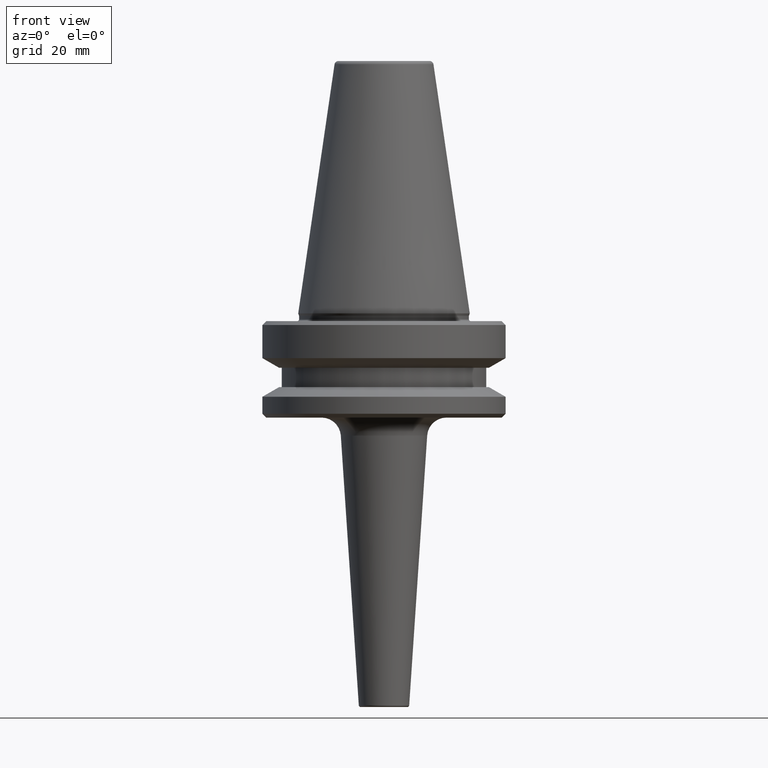
[diagram: clean part render]
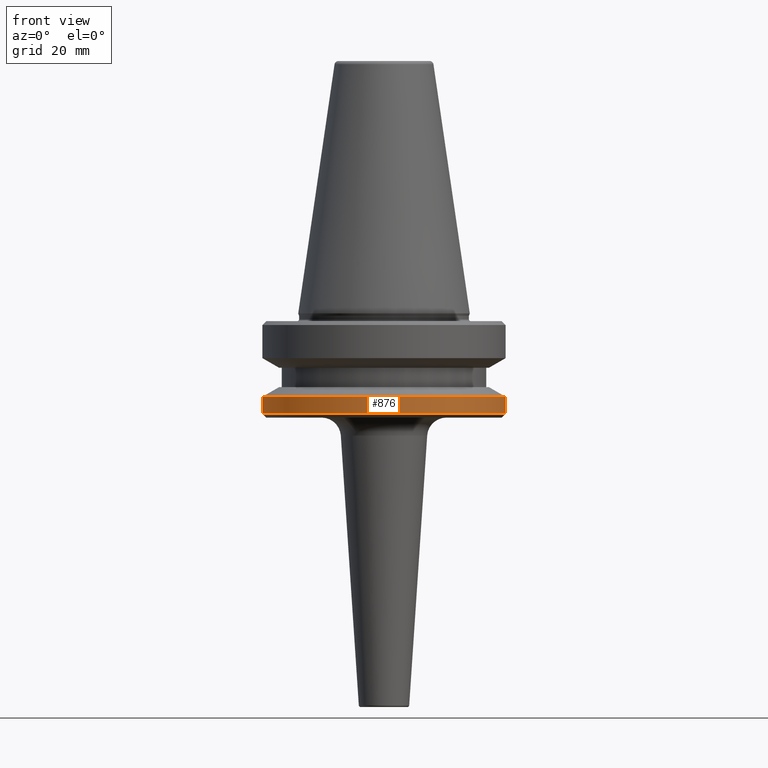
[diagram: same view with one face highlighted and labeled with its STEP entity id]
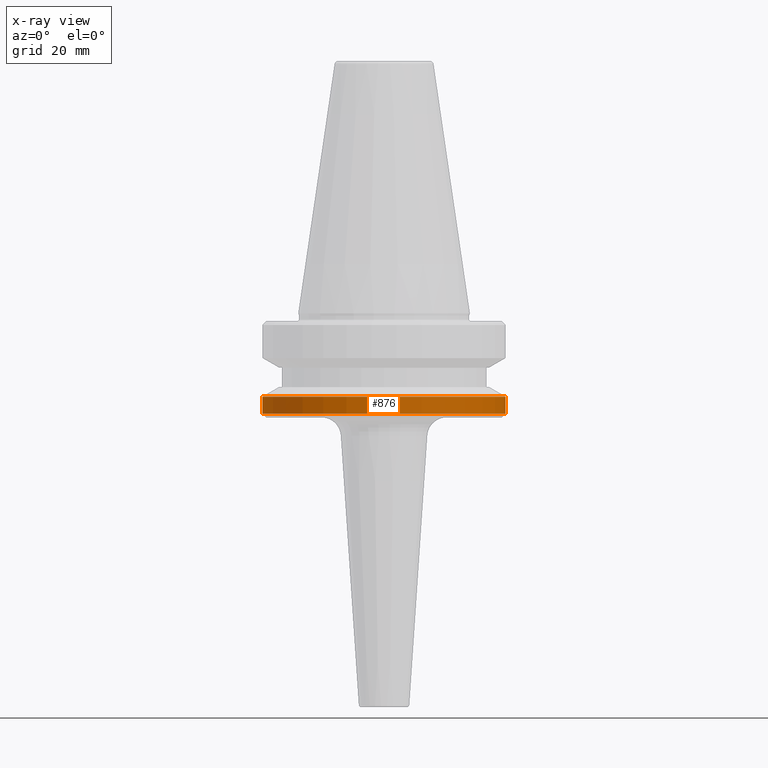
[diagram: x-ray of the same camera — body ghosted, the highlighted face saturated]
A machine part, front view. The second image highlights one B-rep face of the part: STEP entity #876.
The next image is the same camera in x-ray: the body ghosted, the highlighted face saturated — about 0% of this face is hidden behind the body in this view.
In plain terms, the highlighted cylindrical surface (partial cylindrical patch) has radius 31.5 mm, axis along (-0, -0, 1).
Its self-contained STEP definition (entity closure, byte-faithful):
#7 = AXIS2_PLACEMENT_3D ( 'NONE', #778, #225, #48 ) ;
#48 = DIRECTION ( 'NONE',  ( 1.000000000000000000, 0.0000000000000000000, 0.0000000000000000000 ) ) ;
#54 = DIRECTION ( 'NONE',  ( -0.0000000000000000000, -0.0000000000000000000, 1.000000000000000000 ) ) ;
#68 = ORIENTED_EDGE ( 'NONE', *, *, #579, .T. ) ;
#88 = VECTOR ( 'NONE', #294, 1000.000000000000000 ) ;
#100 = AXIS2_PLACEMENT_3D ( 'NONE', #879, #54, #478 ) ;
#107 = CARTESIAN_POINT ( 'NONE',  ( -31.50000000000008500, 3.857637417314172900E-015, -91.40000000000037500 ) ) ;
#149 = ORIENTED_EDGE ( 'NONE', *, *, #975, .F. ) ;
#167 = AXIS2_PLACEMENT_3D ( 'NONE', #389, #611, #531 ) ;
#190 = DIRECTION ( 'NONE',  ( -0.0000000000000000000, -0.0000000000000000000, 1.000000000000000000 ) ) ;
#204 = VECTOR ( 'NONE', #190, 1000.000000000000000 ) ;
#225 = DIRECTION ( 'NONE',  ( -0.0000000000000000000, -0.0000000000000000000, 1.000000000000000000 ) ) ;
#227 = VERTEX_POINT ( 'NONE', #349 ) ;
#294 = DIRECTION ( 'NONE',  ( -0.0000000000000000000, -0.0000000000000000000, 1.000000000000000000 ) ) ;
#315 = CYLINDRICAL_SURFACE ( 'NONE', #167, 31.50000000000008500 ) ;
#332 = ORIENTED_EDGE ( 'NONE', *, *, #846, .T. ) ;
#344 = FACE_OUTER_BOUND ( 'NONE', #772, .T. ) ;
#349 = CARTESIAN_POINT ( 'NONE',  ( 31.50000000000008500, 0.0000000000000000000, -91.40000000000037500 ) ) ;
#383 = ORIENTED_EDGE ( 'NONE', *, *, #836, .F. ) ;
#389 = CARTESIAN_POINT ( 'NONE',  ( 0.0000000000000000000, 0.0000000000000000000, 6.357346922996331500 ) ) ;
#401 = LINE ( 'NONE', #440, #204 ) ;
#403 = CIRCLE ( 'NONE', #100, 31.50000000000008500 ) ;
#440 = CARTESIAN_POINT ( 'NONE',  ( -31.50000000000008500, 3.857637417314172900E-015, 6.357346922996331500 ) ) ;
#478 = DIRECTION ( 'NONE',  ( 1.000000000000000000, 0.0000000000000000000, 0.0000000000000000000 ) ) ;
#531 = DIRECTION ( 'NONE',  ( 1.000000000000000000, 0.0000000000000000000, 0.0000000000000000000 ) ) ;
#579 = EDGE_CURVE ( 'NONE', #227, #990, #908, .T. ) ;
#611 = DIRECTION ( 'NONE',  ( -0.0000000000000000000, -0.0000000000000000000, 1.000000000000000000 ) ) ;
#671 = CARTESIAN_POINT ( 'NONE',  ( -31.50000000000008500, 3.857637417314172900E-015, -87.00014200631733300 ) ) ;
#772 = EDGE_LOOP ( 'NONE', ( #149, #332, #68, #383 ) ) ;
#778 = CARTESIAN_POINT ( 'NONE',  ( 0.0000000000000000000, 0.0000000000000000000, -87.00014200631733300 ) ) ;
#836 = EDGE_CURVE ( 'NONE', #936, #990, #1027, .T. ) ;
#846 = EDGE_CURVE ( 'NONE', #959, #227, #403, .T. ) ;
#876 = ADVANCED_FACE ( 'NONE', ( #344 ), #315, .T. ) ;
#879 = CARTESIAN_POINT ( 'NONE',  ( 0.0000000000000000000, 0.0000000000000000000, -91.40000000000037500 ) ) ;
#892 = CARTESIAN_POINT ( 'NONE',  ( 31.50000000000008500, 0.0000000000000000000, -87.00014200631733300 ) ) ;
#908 = LINE ( 'NONE', #927, #88 ) ;
#927 = CARTESIAN_POINT ( 'NONE',  ( 31.50000000000008500, 0.0000000000000000000, 6.357346922996331500 ) ) ;
#936 = VERTEX_POINT ( 'NONE', #671 ) ;
#959 = VERTEX_POINT ( 'NONE', #107 ) ;
#975 = EDGE_CURVE ( 'NONE', #959, #936, #401, .T. ) ;
#990 = VERTEX_POINT ( 'NONE', #892 ) ;
#1027 = CIRCLE ( 'NONE', #7, 31.50000000000008500 ) ;